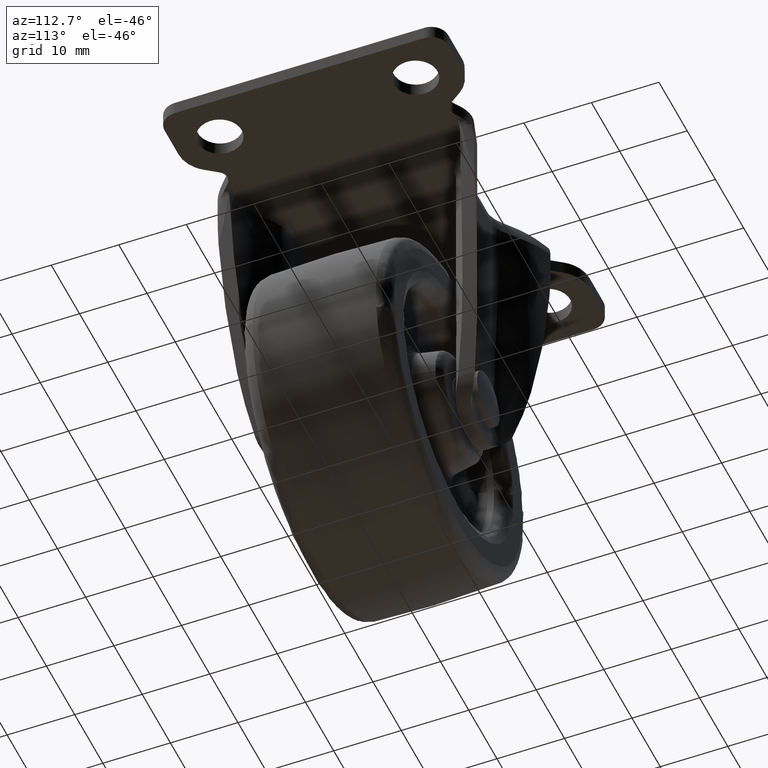
[diagram: clean part render]
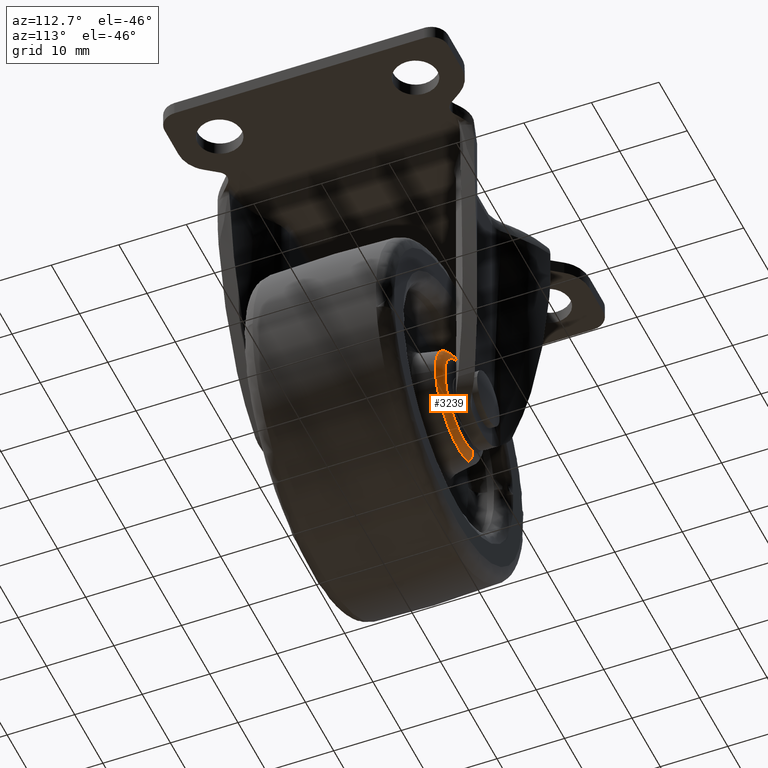
[diagram: same view with one face highlighted and labeled with its STEP entity id]
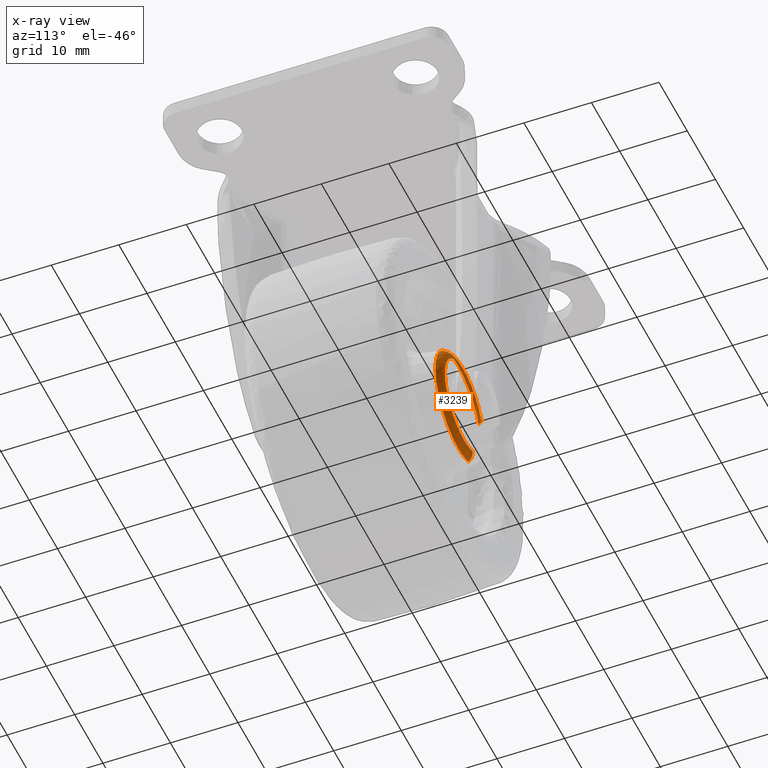
[diagram: x-ray of the same camera — body ghosted, the highlighted face saturated]
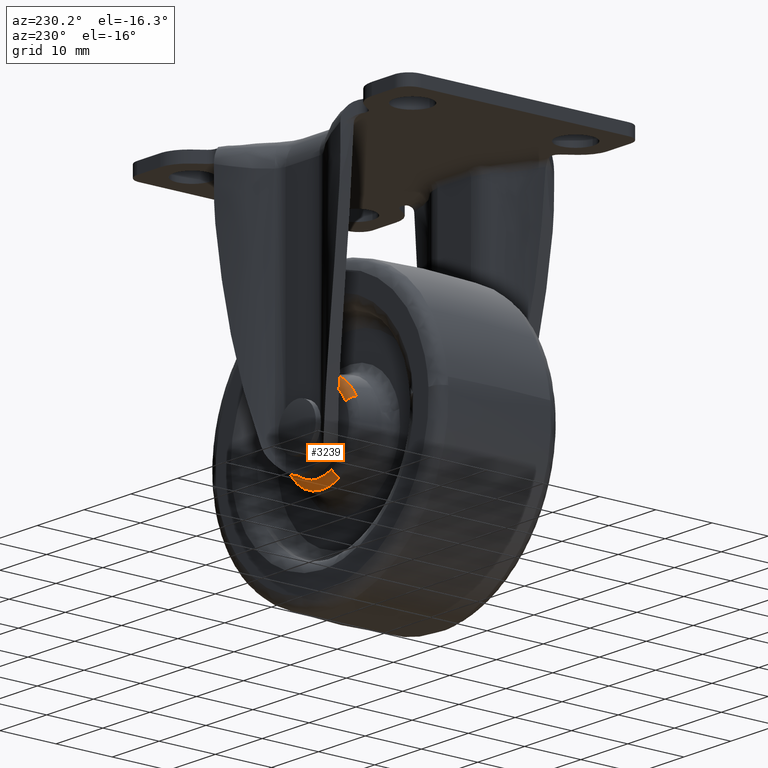
[diagram: same view with one face highlighted and labeled with its STEP entity id]
A machine part, auxiliary view. The second image highlights one B-rep face of the part: STEP entity #3239.
The next image is the same camera in x-ray: the body ghosted, the highlighted face saturated — about 15% of this face is hidden behind the body in this view.
A second angle (auxiliary view) of the same face is appended — the face is thin or edge-on in the first view.
In plain terms, the highlighted face is a freeform B-spline surface patch.
Its self-contained STEP definition (entity closure, byte-faithful):
#1011=CARTESIAN_POINT('',(2.845714795521141,10.999999999996019,-35.423602242049931));
#1012=VERTEX_POINT('',#1011);
#1018=CARTESIAN_POINT('',(0.0,11.0,-34.906799416540608));
#1019=VERTEX_POINT('',#1018);
#1020=CARTESIAN_POINT('',(2.845714795521141,10.999999999996021,-35.423602242049924));
#1021=CARTESIAN_POINT('',(1.469785002898349,11.0,-34.906799416540608));
#1022=CARTESIAN_POINT('',(0.0,11.0,-34.906799416540608));
#1030=(BOUNDED_CURVE()B_SPLINE_CURVE(2,(#1020,#1021,#1022),.UNSPECIFIED.,.F.,.U.)B_SPLINE_CURVE_WITH_KNOTS((3,3),(0.440284170898066,0.500000000000000),.UNSPECIFIED.)CURVE()GEOMETRIC_REPRESENTATION_ITEM()RATIONAL_B_SPLINE_CURVE((0.893499554634734,0.930038554400883,1.0))REPRESENTATION_ITEM(''));
#1031=EDGE_CURVE('',#1012,#1019,#1030,.T.);
#1033=CARTESIAN_POINT('',(-7.234037888869684,11.000000107706750,-39.371144716546738));
#1034=VERTEX_POINT('',#1033);
#1035=CARTESIAN_POINT('',(0.0,11.0,-34.906799416540608));
#1036=CARTESIAN_POINT('',(-4.994560730719740,10.999999999999998,-34.906799416540615));
#1037=CARTESIAN_POINT('',(-7.234037888869684,11.000000107706754,-39.371144716546745));
#1045=(BOUNDED_CURVE()B_SPLINE_CURVE(2,(#1035,#1036,#1037),.UNSPECIFIED.,.F.,.U.)B_SPLINE_CURVE_WITH_KNOTS((3,3),(0.500000000000000,0.673769062090015),.UNSPECIFIED.)CURVE()GEOMETRIC_REPRESENTATION_ITEM()RATIONAL_B_SPLINE_CURVE((1.0,0.796416880297044,0.875845342739223))REPRESENTATION_ITEM(''));
#1046=EDGE_CURVE('',#1019,#1034,#1045,.T.);
#1048=CARTESIAN_POINT('',(-3.628855283453269,11.000000107706761,-50.234037888869679));
#1049=VERTEX_POINT('',#1048);
#1065=CARTESIAN_POINT('',(0.0,11.0,-51.093200583459392));
#1066=VERTEX_POINT('',#1065);
#1067=CARTESIAN_POINT('',(-3.628855283453269,11.000000107706756,-50.234037888869672));
#1068=CARTESIAN_POINT('',(-1.916134720225527,11.0,-51.093200583459385));
#1069=CARTESIAN_POINT('',(0.0,11.0,-51.093200583459392));
#1077=(BOUNDED_CURVE()B_SPLINE_CURVE(2,(#1067,#1068,#1069),.UNSPECIFIED.,.F.,.U.)B_SPLINE_CURVE_WITH_KNOTS((3,3),(0.923769062090014,1.0),.UNSPECIFIED.)CURVE()GEOMETRIC_REPRESENTATION_ITEM()RATIONAL_B_SPLINE_CURVE((0.875845342739222,0.910689900889504,1.0))REPRESENTATION_ITEM(''));
#1078=EDGE_CURVE('',#1049,#1066,#1077,.T.);
#1080=CARTESIAN_POINT('',(8.078105132957603,10.999999999995209,-43.494078075819083));
#1081=VERTEX_POINT('',#1080);
#1082=CARTESIAN_POINT('',(0.0,11.0,-51.093200583459392));
#1083=CARTESIAN_POINT('',(7.613322889476637,10.999999999999998,-51.093200583459399));
#1084=CARTESIAN_POINT('',(8.078105132957603,10.999999999995213,-43.494078075819083));
#1092=(BOUNDED_CURVE()B_SPLINE_CURVE(2,(#1082,#1083,#1084),.UNSPECIFIED.,.F.,.U.)B_SPLINE_CURVE_WITH_KNOTS((3,3),(0.0,0.239332962240423),.UNSPECIFIED.)CURVE()GEOMETRIC_REPRESENTATION_ITEM()RATIONAL_B_SPLINE_CURVE((1.0,0.719603993284976,0.976072041669889))REPRESENTATION_ITEM(''));
#1093=EDGE_CURVE('',#1066,#1081,#1092,.T.);
#1195=CARTESIAN_POINT('',(8.078105132957603,10.999999999995214,-43.494078075819083));
#1196=CARTESIAN_POINT('',(8.093200583459391,10.999999999999998,-43.247269641790709));
#1197=CARTESIAN_POINT('',(8.093200583459391,11.0,-43.0));
#1198=CARTESIAN_POINT('',(8.093200583459391,11.0,-37.394571616048310));
#1199=CARTESIAN_POINT('',(2.845714795521141,10.999999999996021,-35.423602242049924));
#1207=(BOUNDED_CURVE()B_SPLINE_CURVE(2,(#1195,#1196,#1197,#1198,#1199),.UNSPECIFIED.,.F.,.U.)B_SPLINE_CURVE_WITH_KNOTS((3,2,3),(0.239332962240423,0.250000000000000,0.440284170898066),.UNSPECIFIED.)CURVE()GEOMETRIC_REPRESENTATION_ITEM()RATIONAL_B_SPLINE_CURVE((0.976072041669889,0.987502787901571,1.0,0.777068226785665,0.893499554634734))REPRESENTATION_ITEM(''));
#1208=EDGE_CURVE('',#1081,#1012,#1207,.T.);
#3128=CARTESIAN_POINT('',(-2.987217010925561,11.847910108951098,-48.954947044133895));
#3129=CARTESIAN_POINT('',(2.967730033208336,11.847910108951107,-51.942164055059472));
#3130=CARTESIAN_POINT('',(5.954947044133896,11.847910108951098,-45.987217010925562));
#3131=CARTESIAN_POINT('',(8.942164055059459,11.847910108951107,-40.032269966791674));
#3132=CARTESIAN_POINT('',(2.987217010925563,11.847910108951098,-37.045052955866097));
#3133=CARTESIAN_POINT('',(-2.967730033208334,11.847910108951107,-34.057835944940535));
#3134=CARTESIAN_POINT('',(-5.954947044133896,11.847910108951098,-40.012782989074438));
#3135=CARTESIAN_POINT('',(-3.460711840940903,11.903712302129030,-49.898847881635788));
#3136=CARTESIAN_POINT('',(3.438136040694887,11.903712302129030,-53.359559722576698));
#3137=CARTESIAN_POINT('',(6.898847881635789,11.903712302129030,-46.460711840940903));
#3138=CARTESIAN_POINT('',(10.359559722576693,11.903712302129030,-39.561863959305121));
#3139=CARTESIAN_POINT('',(3.460711840940904,11.903712302129030,-36.101152118364212));
#3140=CARTESIAN_POINT('',(-3.438136040694886,11.903712302129030,-32.640440277423302));
#3141=CARTESIAN_POINT('',(-6.898847881635789,11.903712302129030,-39.539288159059097));
#3142=CARTESIAN_POINT('',(-3.643372847439738,10.927851648637692,-50.262978313656781));
#3143=CARTESIAN_POINT('',(3.619605466217035,10.927851648637690,-53.906351161096509));
#3144=CARTESIAN_POINT('',(7.262978313656776,10.927851648637692,-46.643372847439750));
#3145=CARTESIAN_POINT('',(10.906351161096509,10.927851648637690,-39.380394533782969));
#3146=CARTESIAN_POINT('',(3.643372847439740,10.927851648637692,-35.737021686343219));
#3147=CARTESIAN_POINT('',(-3.619605466217035,10.927851648637690,-32.093648838903484));
#3148=CARTESIAN_POINT('',(-7.262978313656774,10.927851648637692,-39.356627152560250));
#3156=(BOUNDED_SURFACE()B_SPLINE_SURFACE(2,2,((#3128,#3135,#3142),(#3129,#3136,#3143),(#3130,#3137,#3144),(#3131,#3138,#3145),(#3132,#3139,#3146),(#3133,#3140,#3147),(#3134,#3141,#3148)),.UNSPECIFIED.,.F.,.F.,.U.)B_SPLINE_SURFACE_WITH_KNOTS((3,2,2,3),(3,3),(0.0,13.462898628109221,26.925797256218441,40.388695884327660),(0.0,1.902348323949500),.UNSPECIFIED.)GEOMETRIC_REPRESENTATION_ITEM()RATIONAL_B_SPLINE_SURFACE(((0.919227408056083,0.751789103756549,0.920433003026295),(0.649991933688990,0.531595173288413,0.650844418067791),(0.919227408056083,0.751789103756549,0.920433003026295),(0.649991933688990,0.531595173288413,0.650844418067791),(0.919227408056083,0.751789103756549,0.920433003026295),(0.649991933688990,0.531595173288413,0.650844418067791),(0.919227408056083,0.751789103756549,0.920433003026295)))REPRESENTATION_ITEM('')SURFACE());
#3157=ORIENTED_EDGE('',*,*,#1078,.F.);
#3158=CARTESIAN_POINT('',(-3.022708196280840,11.850000000000000,-49.025697888863718));
#3159=VERTEX_POINT('',#3158);
#3160=CARTESIAN_POINT('',(-3.022708196280840,11.849999999999996,-49.025697888863732));
#3161=CARTESIAN_POINT('',(-3.445601454480385,11.849999993916670,-49.868725680650826));
#3162=CARTESIAN_POINT('',(-3.628855283453269,11.000000107706756,-50.234037888869672));
#3170=(BOUNDED_CURVE()B_SPLINE_CURVE(2,(#3160,#3161,#3162),.UNSPECIFIED.,.F.,.U.)B_SPLINE_CURVE_WITH_KNOTS((3,3),(-1.647808196883793,-0.347058785791119),.UNSPECIFIED.)CURVE()GEOMETRIC_REPRESENTATION_ITEM()RATIONAL_B_SPLINE_CURVE((0.904712402090557,0.766358773762441,0.905808670360414))REPRESENTATION_ITEM(''));
#3171=EDGE_CURVE('',#3159,#1049,#3170,.T.);
#3172=ORIENTED_EDGE('',*,*,#3171,.F.);
#3173=CARTESIAN_POINT('',(0.0,11.850000000000000,-49.741349999999812));
#3174=VERTEX_POINT('',#3173);
#3175=CARTESIAN_POINT('',(-3.022708196280840,11.849999999999996,-49.025697888863718));
#3176=CARTESIAN_POINT('',(-1.596072488416798,11.850000000000001,-49.741349999999812));
#3177=CARTESIAN_POINT('',(0.0,11.850000000000000,-49.741349999999812));
#3185=(BOUNDED_CURVE()B_SPLINE_CURVE(2,(#3175,#3176,#3177),.UNSPECIFIED.,.F.,.U.)B_SPLINE_CURVE_WITH_KNOTS((3,3),(0.923769062099117,1.0),.UNSPECIFIED.)CURVE()GEOMETRIC_REPRESENTATION_ITEM()RATIONAL_B_SPLINE_CURVE((0.875845342747544,0.910689900900168,1.0))REPRESENTATION_ITEM(''));
#3186=EDGE_CURVE('',#3159,#3174,#3185,.T.);
#3187=ORIENTED_EDGE('',*,*,#3186,.T.);
#3188=CARTESIAN_POINT('',(0.0,11.850000000000000,-36.258650000000181));
#3189=VERTEX_POINT('',#3188);
#3190=CARTESIAN_POINT('',(0.0,11.850000000000000,-49.741349999999812));
#3191=CARTESIAN_POINT('',(6.741349999999811,11.849999999999998,-49.741349999999827));
#3192=CARTESIAN_POINT('',(6.741349999999811,11.850000000000000,-43.0));
#3193=CARTESIAN_POINT('',(6.741349999999811,11.849999999999998,-36.258650000000181));
#3194=CARTESIAN_POINT('',(0.0,11.850000000000000,-36.258650000000181));
#3202=(BOUNDED_CURVE()B_SPLINE_CURVE(2,(#3190,#3191,#3192,#3193,#3194),.UNSPECIFIED.,.F.,.U.)B_SPLINE_CURVE_WITH_KNOTS((3,2,3),(0.0,0.250000000000000,0.500000000000000),.UNSPECIFIED.)CURVE()GEOMETRIC_REPRESENTATION_ITEM()RATIONAL_B_SPLINE_CURVE((1.0,0.707106781186548,1.0,0.707106781186548,1.0))REPRESENTATION_ITEM(''));
#3203=EDGE_CURVE('',#3174,#3189,#3202,.T.);
#3204=ORIENTED_EDGE('',*,*,#3203,.T.);
#3205=CARTESIAN_POINT('',(-6.025697888863716,11.850000000000000,-39.977291803719169));
#3206=VERTEX_POINT('',#3205);
#3207=CARTESIAN_POINT('',(0.0,11.850000000000000,-36.258650000000181));
#3208=CARTESIAN_POINT('',(-4.160292536560223,11.849999999999998,-36.258650000000181));
#3209=CARTESIAN_POINT('',(-6.025697888863716,11.849999999999996,-39.977291803719169));
#3217=(BOUNDED_CURVE()B_SPLINE_CURVE(2,(#3207,#3208,#3209),.UNSPECIFIED.,.F.,.U.)B_SPLINE_CURVE_WITH_KNOTS((3,3),(0.500000000000000,0.673769062099116),.UNSPECIFIED.)CURVE()GEOMETRIC_REPRESENTATION_ITEM()RATIONAL_B_SPLINE_CURVE((1.0,0.796416880286381,0.875845342747543))REPRESENTATION_ITEM(''));
#3218=EDGE_CURVE('',#3189,#3206,#3217,.T.);
#3219=ORIENTED_EDGE('',*,*,#3218,.T.);
#3220=CARTESIAN_POINT('',(-6.025697888863716,11.849999999999998,-39.977291803719176));
#3221=CARTESIAN_POINT('',(-6.868725680650833,11.849999993916674,-39.554398545519604));
#3222=CARTESIAN_POINT('',(-7.234037888869684,11.000000107706754,-39.371144716546738));
#3230=(BOUNDED_CURVE()B_SPLINE_CURVE(2,(#3220,#3221,#3222),.UNSPECIFIED.,.F.,.U.)B_SPLINE_CURVE_WITH_KNOTS((3,3),(-1.647808196883803,-0.347058785791117),.UNSPECIFIED.)CURVE()GEOMETRIC_REPRESENTATION_ITEM()RATIONAL_B_SPLINE_CURVE((0.904712402090560,0.766358773762440,0.905808670360415))REPRESENTATION_ITEM(''));
#3231=EDGE_CURVE('',#3206,#1034,#3230,.T.);
#3232=ORIENTED_EDGE('',*,*,#3231,.T.);
#3233=ORIENTED_EDGE('',*,*,#1046,.F.);
#3234=ORIENTED_EDGE('',*,*,#1031,.F.);
#3235=ORIENTED_EDGE('',*,*,#1208,.F.);
#3236=ORIENTED_EDGE('',*,*,#1093,.F.);
#3237=EDGE_LOOP('',(#3157,#3172,#3187,#3204,#3219,#3232,#3233,#3234,#3235,#3236));
#3238=FACE_OUTER_BOUND('',#3237,.T.);
#3239=ADVANCED_FACE('',(#3238),#3156,.T.);